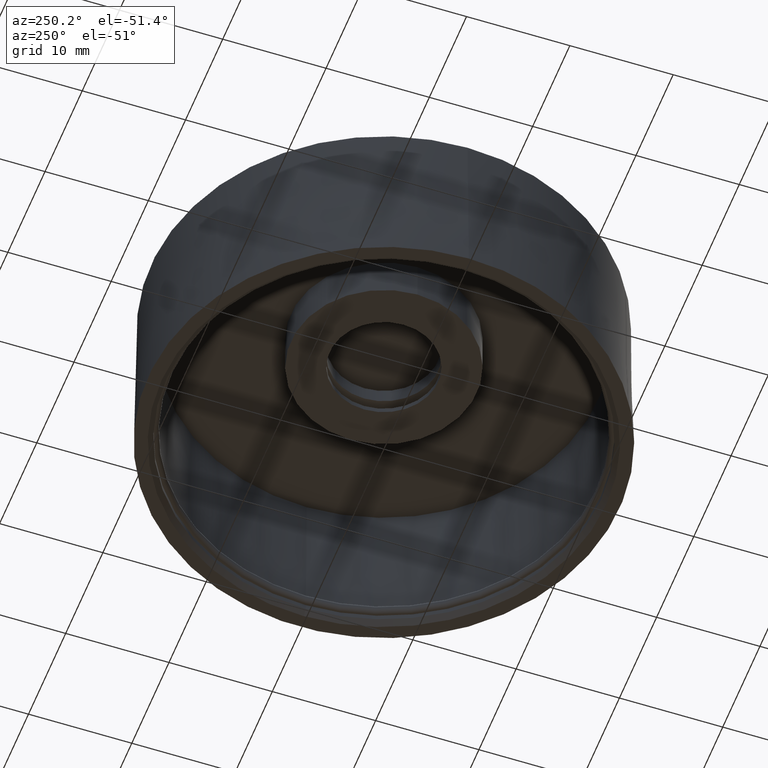
[diagram: clean part render]
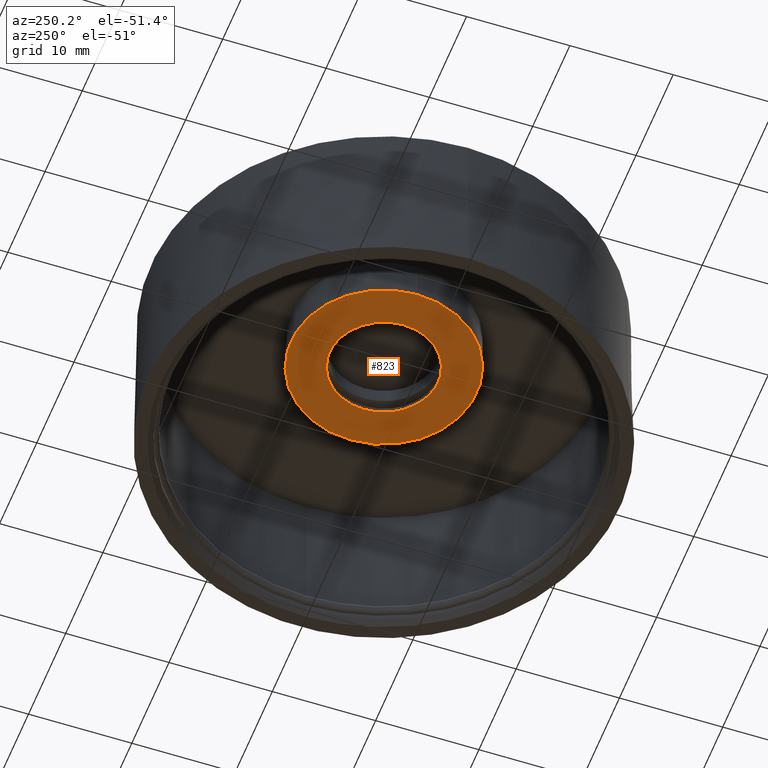
[diagram: same view with one face highlighted and labeled with its STEP entity id]
A machine part, auxiliary view. The second image highlights one B-rep face of the part: STEP entity #823.
In plain terms, the highlighted planar face has unit normal (0, 0, 1).
Its self-contained STEP definition (entity closure, byte-faithful):
#21 = ORIENTED_EDGE ( 'NONE', *, *, #232, .T. ) ;
#22 = CARTESIAN_POINT ( 'NONE',  ( -0.2066929133858267931, 0.000000000000000000, 0.4330708661417322913 ) ) ;
#77 = VERTEX_POINT ( 'NONE', #22 ) ;
#79 = EDGE_CURVE ( 'NONE', #872, #872, #719, .T. ) ;
#127 = DIRECTION ( 'NONE',  ( 1.000000000000000000, 0.000000000000000000, 0.000000000000000000 ) ) ;
#155 = DIRECTION ( 'NONE',  ( -1.000000000000000000, 0.000000000000000000, 0.000000000000000000 ) ) ;
#203 = CARTESIAN_POINT ( 'NONE',  ( -1.980481191969228494E-17, 0.000000000000000000, 0.4330708661417322913 ) ) ;
#208 = EDGE_LOOP ( 'NONE', ( #21 ) ) ;
#232 = EDGE_CURVE ( 'NONE', #77, #77, #603, .T. ) ;
#269 = ORIENTED_EDGE ( 'NONE', *, *, #79, .T. ) ;
#283 = FACE_BOUND ( 'NONE', #208, .T. ) ;
#296 = DIRECTION ( 'NONE',  ( -1.000000000000000000, 0.000000000000000000, 0.000000000000000000 ) ) ;
#335 = AXIS2_PLACEMENT_3D ( 'NONE', #628, #849, #155 ) ;
#364 = AXIS2_PLACEMENT_3D ( 'NONE', #203, #819, #127 ) ;
#586 = FACE_OUTER_BOUND ( 'NONE', #692, .T. ) ;
#596 = DIRECTION ( 'NONE',  ( 0.000000000000000000, 0.000000000000000000, -1.000000000000000000 ) ) ;
#599 = CARTESIAN_POINT ( 'NONE',  ( 0.000000000000000000, 0.000000000000000000, 0.4330708661417322913 ) ) ;
#603 = CIRCLE ( 'NONE', #335, 0.2066929133858267931 ) ;
#628 = CARTESIAN_POINT ( 'NONE',  ( 0.000000000000000000, 0.000000000000000000, 0.4330708661417322913 ) ) ;
#692 = EDGE_LOOP ( 'NONE', ( #269 ) ) ;
#719 = CIRCLE ( 'NONE', #927, 0.3543307086614173040 ) ;
#819 = DIRECTION ( 'NONE',  ( 0.000000000000000000, 0.000000000000000000, 1.000000000000000000 ) ) ;
#823 = ADVANCED_FACE ( 'NONE', ( #283, #586 ), #893, .F. ) ;
#849 = DIRECTION ( 'NONE',  ( 0.000000000000000000, 0.000000000000000000, 1.000000000000000000 ) ) ;
#852 = CARTESIAN_POINT ( 'NONE',  ( -0.3543307086614173040, 0.000000000000000000, 0.4330708661417322913 ) ) ;
#872 = VERTEX_POINT ( 'NONE', #852 ) ;
#893 = PLANE ( 'NONE',  #364 ) ;
#927 = AXIS2_PLACEMENT_3D ( 'NONE', #599, #596, #296 ) ;